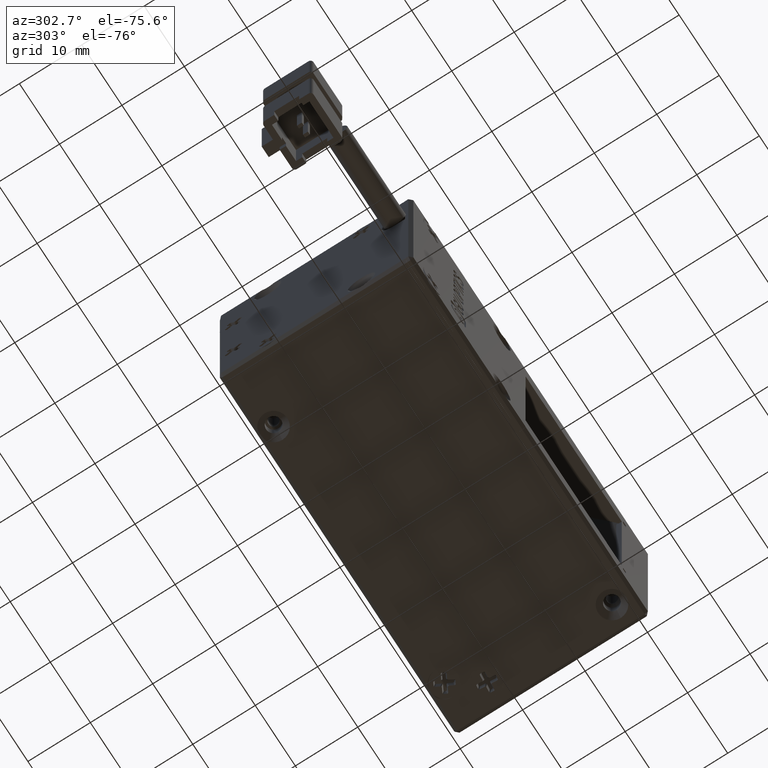
[diagram: clean part render]
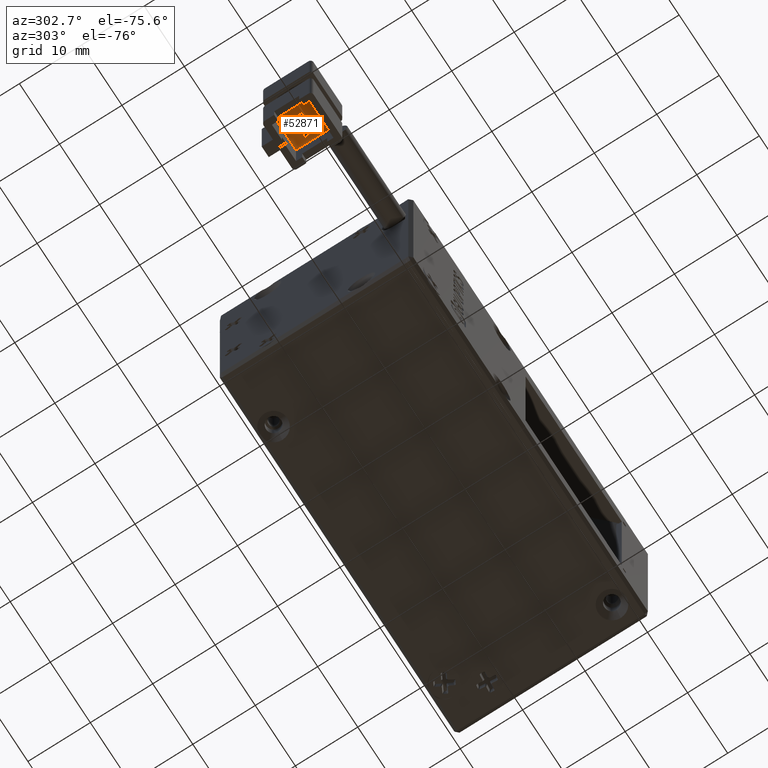
[diagram: same view with one face highlighted and labeled with its STEP entity id]
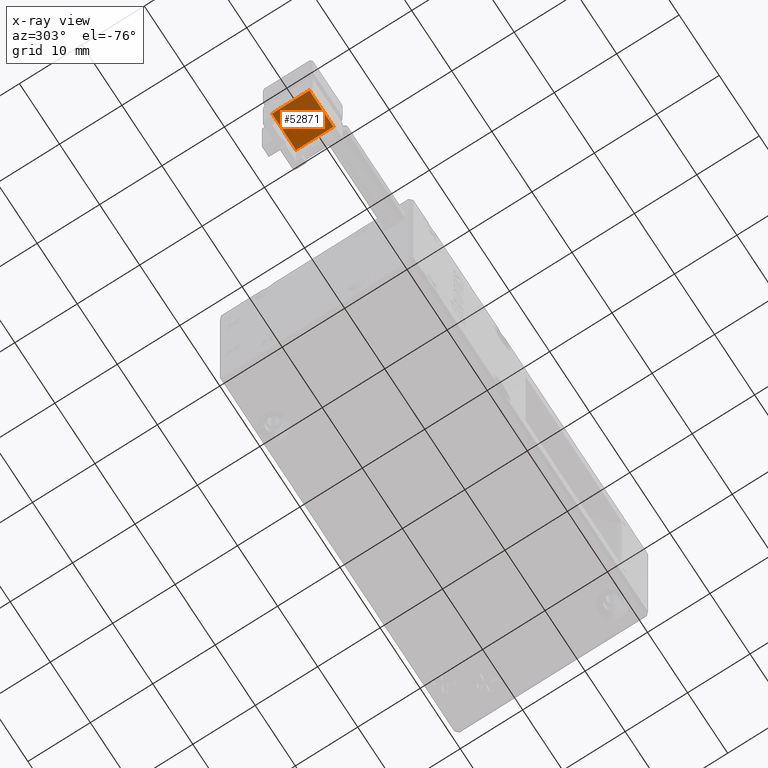
[diagram: x-ray of the same camera — body ghosted, the highlighted face saturated]
A machine part, auxiliary view. The second image highlights one B-rep face of the part: STEP entity #52871.
The next image is the same camera in x-ray: the body ghosted, the highlighted face saturated — about 0% of this face is hidden behind the body in this view.
In plain terms, the highlighted planar face has unit normal (0, -0, -1).
Its self-contained STEP definition (entity closure, byte-faithful):
#1908 = VERTEX_POINT ( 'NONE', #12178 ) ;
#2203 = CARTESIAN_POINT ( 'NONE',  ( -82.96895663278029100, -28.06325780229271100, 22.26069164156520200 ) ) ;
#4369 = DIRECTION ( 'NONE',  ( 6.040756085623560500E-017, 1.000000000000000000, 1.005987973860572400E-032 ) ) ;
#4371 = CARTESIAN_POINT ( 'NONE',  ( -83.96895663278034800, -28.06325780229271100, 22.26069164156517700 ) ) ;
#5608 = DIRECTION ( 'NONE',  ( 1.665334536937736000E-016, -1.089862896423739600E-016, -1.000000000000000000 ) ) ;
#7029 = VECTOR ( 'NONE', #77319, 1000.000000000000000 ) ;
#7103 = ORIENTED_EDGE ( 'NONE', *, *, #27392, .T. ) ;
#9542 = DIRECTION ( 'NONE',  ( -1.000000000000000000, 3.642382900339204700E-016, -0.0000000000000000000 ) ) ;
#11104 = VERTEX_POINT ( 'NONE', #48315 ) ;
#11799 = LINE ( 'NONE', #27684, #28013 ) ;
#12178 = CARTESIAN_POINT ( 'NONE',  ( -84.46895663278031900, -28.86325780229270800, 22.26069164156520200 ) ) ;
#12633 = FACE_BOUND ( 'NONE', #60205, .T. ) ;
#14212 = VECTOR ( 'NONE', #4369, 1000.000000000000000 ) ;
#15531 = CARTESIAN_POINT ( 'NONE',  ( -84.46895663278033300, -28.06325780229271100, 22.26069164156519200 ) ) ;
#17597 = PLANE ( 'NONE',  #19643 ) ;
#17950 = VECTOR ( 'NONE', #9542, 1000.000000000000000 ) ;
#18729 = CARTESIAN_POINT ( 'NONE',  ( -86.46895663278027700, -25.35000000000005100, 22.26069164156519200 ) ) ;
#18941 = CARTESIAN_POINT ( 'NONE',  ( -83.96895663278034800, -28.06325780229271100, 22.26069164156518800 ) ) ;
#19363 = EDGE_LOOP ( 'NONE', ( #78864, #77926, #7103, #31087 ) ) ;
#19643 = AXIS2_PLACEMENT_3D ( 'NONE', #42182, #5608, #48320 ) ;
#20074 = ORIENTED_EDGE ( 'NONE', *, *, #58224, .T. ) ;
#21085 = CARTESIAN_POINT ( 'NONE',  ( -82.46895663278027700, -28.86325780229270800, 22.26069164156517700 ) ) ;
#21818 = VECTOR ( 'NONE', #28334, 1000.000000000000000 ) ;
#22814 = DIRECTION ( 'NONE',  ( -1.000000000000000000, -7.511771070445236300E-017, 8.186800576107498300E-033 ) ) ;
#23484 = CARTESIAN_POINT ( 'NONE',  ( -83.96895663278034800, -28.86325780229270800, 22.26069164156519200 ) ) ;
#24612 = LINE ( 'NONE', #67178, #57074 ) ;
#25754 = CARTESIAN_POINT ( 'NONE',  ( -82.46895663278027700, -28.06325780229271100, 22.26069164156521300 ) ) ;
#25808 = ORIENTED_EDGE ( 'NONE', *, *, #64554, .T. ) ;
#25900 = EDGE_CURVE ( 'NONE', #71142, #41132, #34236, .T. ) ;
#26092 = CARTESIAN_POINT ( 'NONE',  ( -80.46895663278033300, -25.35000000000005100, 22.26069164156520200 ) ) ;
#26106 = DIRECTION ( 'NONE',  ( 1.000000000000000000, -0.0000000000000000000, 1.665334536937736000E-016 ) ) ;
#26298 = ORIENTED_EDGE ( 'NONE', *, *, #32707, .T. ) ;
#27392 = EDGE_CURVE ( 'NONE', #64263, #71142, #11799, .T. ) ;
#27684 = CARTESIAN_POINT ( 'NONE',  ( -80.46895663278033300, -31.35000000000005100, 22.26069164156521300 ) ) ;
#27799 = VERTEX_POINT ( 'NONE', #23484 ) ;
#28013 = VECTOR ( 'NONE', #64206, 1000.000000000000000 ) ;
#28334 = DIRECTION ( 'NONE',  ( 1.000000000000000000, 7.511771070445236300E-017, -8.186800576107498300E-033 ) ) ;
#28838 = FACE_OUTER_BOUND ( 'NONE', #19363, .T. ) ;
#29060 = VERTEX_POINT ( 'NONE', #15531 ) ;
#29730 = LINE ( 'NONE', #4371, #74595 ) ;
#30671 = DIRECTION ( 'NONE',  ( -1.814986321941448300E-032, -1.000000000000000000, 1.089862896423739600E-016 ) ) ;
#31087 = ORIENTED_EDGE ( 'NONE', *, *, #25900, .T. ) ;
#31891 = DIRECTION ( 'NONE',  ( 7.511771070445246200E-017, 1.000000000000000000, -8.339741198121480700E-033 ) ) ;
#32120 = CARTESIAN_POINT ( 'NONE',  ( -80.46895663278033300, -31.35000000000005100, 22.26069164156521300 ) ) ;
#32707 = EDGE_CURVE ( 'NONE', #68062, #73919, #24612, .T. ) ;
#33400 = DIRECTION ( 'NONE',  ( 1.000000000000000000, 7.511771070445236300E-017, -8.186800576107498300E-033 ) ) ;
#34236 = LINE ( 'NONE', #52494, #17950 ) ;
#34868 = CARTESIAN_POINT ( 'NONE',  ( -83.96895663278034800, -28.06325780229271100, 22.26069164156517700 ) ) ;
#35102 = LINE ( 'NONE', #25754, #49420 ) ;
#35282 = EDGE_CURVE ( 'NONE', #73919, #78010, #36519, .T. ) ;
#36519 = LINE ( 'NONE', #21085, #50792 ) ;
#36945 = ORIENTED_EDGE ( 'NONE', *, *, #35282, .T. ) ;
#38100 = LINE ( 'NONE', #70482, #21818 ) ;
#40922 = DIRECTION ( 'NONE',  ( -1.000000000000000000, 1.835379279530030300E-016, -0.0000000000000000000 ) ) ;
#41113 = CARTESIAN_POINT ( 'NONE',  ( -86.46895663278026200, -25.35000000000005100, 22.26069164156518500 ) ) ;
#41132 = VERTEX_POINT ( 'NONE', #76638 ) ;
#41626 = ORIENTED_EDGE ( 'NONE', *, *, #69110, .T. ) ;
#42182 = CARTESIAN_POINT ( 'NONE',  ( -80.46895663278030500, -31.35000000000005100, 22.26069164156521300 ) ) ;
#43703 = CARTESIAN_POINT ( 'NONE',  ( -82.46895663278027700, -28.86325780229270800, 22.26069164156520200 ) ) ;
#44401 = ORIENTED_EDGE ( 'NONE', *, *, #45545, .T. ) ;
#45015 = VERTEX_POINT ( 'NONE', #18941 ) ;
#45505 = VECTOR ( 'NONE', #40922, 1000.000000000000000 ) ;
#45543 = ORIENTED_EDGE ( 'NONE', *, *, #57946, .T. ) ;
#45545 = EDGE_CURVE ( 'NONE', #27799, #45015, #46710, .T. ) ;
#46710 = LINE ( 'NONE', #34868, #14212 ) ;
#47016 = VECTOR ( 'NONE', #69522, 1000.000000000000000 ) ;
#48315 = CARTESIAN_POINT ( 'NONE',  ( -82.46895663278027700, -28.06325780229271100, 22.26069164156521300 ) ) ;
#48320 = DIRECTION ( 'NONE',  ( -1.000000000000000000, 0.0000000000000000000, -1.665334536937736000E-016 ) ) ;
#48782 = VERTEX_POINT ( 'NONE', #18729 ) ;
#49420 = VECTOR ( 'NONE', #31891, 1000.000000000000000 ) ;
#50792 = VECTOR ( 'NONE', #33400, 1000.000000000000000 ) ;
#51726 = EDGE_CURVE ( 'NONE', #1908, #27799, #38100, .T. ) ;
#52494 = CARTESIAN_POINT ( 'NONE',  ( -80.46895663278030500, -31.35000000000005100, 22.26069164156521300 ) ) ;
#52871 = ADVANCED_FACE ( 'NONE', ( #12633, #28838, #59379 ), #17597, .T. ) ;
#53514 = VECTOR ( 'NONE', #26106, 1000.000000000000000 ) ;
#53846 = LINE ( 'NONE', #41113, #7029 ) ;
#57074 = VECTOR ( 'NONE', #30671, 1000.000000000000000 ) ;
#57946 = EDGE_CURVE ( 'NONE', #78010, #11104, #35102, .T. ) ;
#58224 = EDGE_CURVE ( 'NONE', #11104, #68062, #77896, .T. ) ;
#59379 = FACE_BOUND ( 'NONE', #62417, .T. ) ;
#60205 = EDGE_LOOP ( 'NONE', ( #25808, #41626, #67887, #44401 ) ) ;
#62417 = EDGE_LOOP ( 'NONE', ( #20074, #26298, #36945, #45543 ) ) ;
#62891 = CARTESIAN_POINT ( 'NONE',  ( -80.46895663278030500, -25.35000000000005100, 22.26069164156521300 ) ) ;
#63205 = LINE ( 'NONE', #63411, #47016 ) ;
#63411 = CARTESIAN_POINT ( 'NONE',  ( -84.46895663278034800, -31.35000000000005100, 22.26069164156521300 ) ) ;
#64206 = DIRECTION ( 'NONE',  ( -1.814986321941448300E-032, -1.000000000000000000, 1.089862896423739600E-016 ) ) ;
#64263 = VERTEX_POINT ( 'NONE', #26092 ) ;
#64554 = EDGE_CURVE ( 'NONE', #45015, #29060, #29730, .T. ) ;
#66074 = EDGE_CURVE ( 'NONE', #48782, #64263, #69699, .T. ) ;
#67178 = CARTESIAN_POINT ( 'NONE',  ( -82.96895663278027700, -31.35000000000005100, 22.26069164156521300 ) ) ;
#67887 = ORIENTED_EDGE ( 'NONE', *, *, #51726, .T. ) ;
#68062 = VERTEX_POINT ( 'NONE', #2203 ) ;
#69110 = EDGE_CURVE ( 'NONE', #29060, #1908, #63205, .T. ) ;
#69522 = DIRECTION ( 'NONE',  ( -1.814986321941448300E-032, -1.000000000000000000, 1.089862896423739600E-016 ) ) ;
#69699 = LINE ( 'NONE', #62891, #53514 ) ;
#70482 = CARTESIAN_POINT ( 'NONE',  ( -83.96895663278034800, -28.86325780229270800, 22.26069164156519900 ) ) ;
#71142 = VERTEX_POINT ( 'NONE', #32120 ) ;
#72733 = EDGE_CURVE ( 'NONE', #41132, #48782, #53846, .T. ) ;
#73919 = VERTEX_POINT ( 'NONE', #78986 ) ;
#74595 = VECTOR ( 'NONE', #22814, 1000.000000000000000 ) ;
#76638 = CARTESIAN_POINT ( 'NONE',  ( -86.46895663278026200, -31.35000000000005800, 22.26069164156518500 ) ) ;
#77319 = DIRECTION ( 'NONE',  ( 1.417227237926483500E-016, 1.000000000000000000, 2.360157466007847000E-032 ) ) ;
#77397 = CARTESIAN_POINT ( 'NONE',  ( -82.46895663278027700, -28.06325780229271100, 22.26069164156521300 ) ) ;
#77896 = LINE ( 'NONE', #77397, #45505 ) ;
#77926 = ORIENTED_EDGE ( 'NONE', *, *, #66074, .T. ) ;
#78010 = VERTEX_POINT ( 'NONE', #43703 ) ;
#78864 = ORIENTED_EDGE ( 'NONE', *, *, #72733, .T. ) ;
#78986 = CARTESIAN_POINT ( 'NONE',  ( -82.96895663278030500, -28.86325780229270800, 22.26069164156518800 ) ) ;